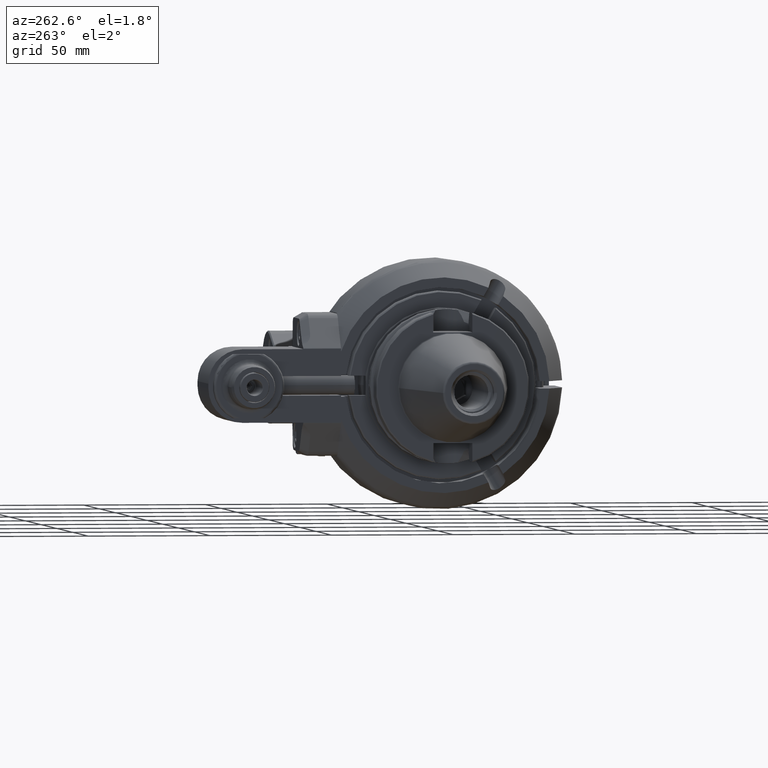
[diagram: clean part render]
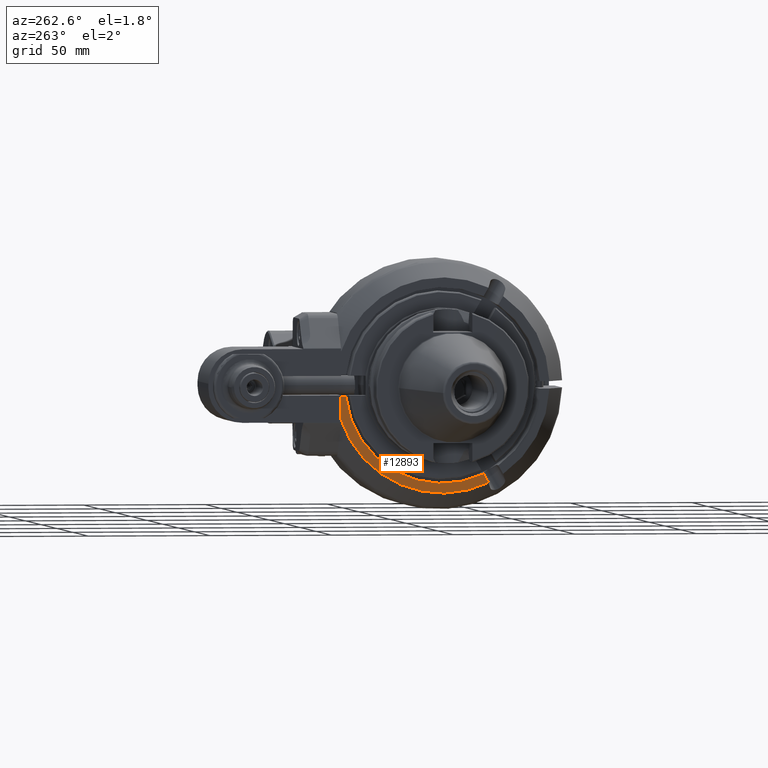
[diagram: same view with one face highlighted and labeled with its STEP entity id]
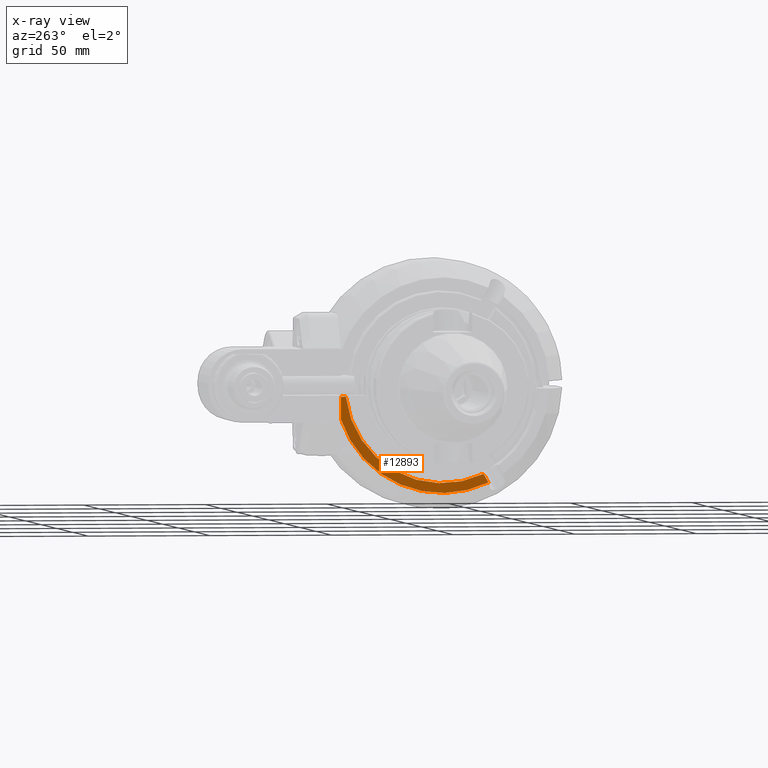
[diagram: x-ray of the same camera — body ghosted, the highlighted face saturated]
A machine part, auxiliary view. The second image highlights one B-rep face of the part: STEP entity #12893.
The next image is the same camera in x-ray: the body ghosted, the highlighted face saturated — about 0% of this face is hidden behind the body in this view.
In plain terms, the highlighted planar face has unit normal (-1, -0, 0).
Its self-contained STEP definition (entity closure, byte-faithful):
#1296=LINE('',#21707,#2149);
#1318=LINE('',#21935,#2171);
#1319=LINE('',#21953,#2172);
#2149=VECTOR('',#16956,9.390194383158);
#2171=VECTOR('',#17032,4.01399376984687);
#2172=VECTOR('',#17045,2.003931011986);
#3195=FACE_OUTER_BOUND('',#4066,.T.);
#4066=EDGE_LOOP('',(#10529,#10530,#10531,#10532,#10533));
#4845=CIRCLE('',#14171,40.);
#4848=CIRCLE('',#14176,44.);
#5798=VERTEX_POINT('',#21702);
#5799=VERTEX_POINT('',#21706);
#5836=VERTEX_POINT('',#21918);
#5837=VERTEX_POINT('',#21920);
#5838=VERTEX_POINT('',#21924);
#7433=EDGE_CURVE('',#5799,#5798,#1296,.T.);
#7482=EDGE_CURVE('',#5837,#5836,#4845,.T.);
#7485=EDGE_CURVE('',#5838,#5837,#1318,.T.);
#7489=EDGE_CURVE('',#5798,#5838,#4848,.T.);
#7490=EDGE_CURVE('',#5836,#5799,#1319,.T.);
#10529=ORIENTED_EDGE('',*,*,#7489,.T.);
#10530=ORIENTED_EDGE('',*,*,#7485,.T.);
#10531=ORIENTED_EDGE('',*,*,#7482,.T.);
#10532=ORIENTED_EDGE('',*,*,#7490,.T.);
#10533=ORIENTED_EDGE('',*,*,#7433,.T.);
#12262=PLANE('',#14178);
#12893=ADVANCED_FACE('',(#3195),#12262,.T.);
#14171=AXIS2_PLACEMENT_3D('',#21921,#17027,#17028);
#14176=AXIS2_PLACEMENT_3D('',#21950,#17039,#17040);
#14178=AXIS2_PLACEMENT_3D('',#21952,#17043,#17044);
#16956=DIRECTION('',(0.,-1.284852598456E-12,-1.));
#17027=DIRECTION('center_axis',(1.,0.,0.));
#17028=DIRECTION('ref_axis',(0.,-0.422305036941278,-0.906453780274552));
#17032=DIRECTION('',(0.,0.500000000000017,0.866025403784429));
#17039=DIRECTION('center_axis',(-1.,0.,0.));
#17040=DIRECTION('ref_axis',(0.,0.948863636363632,-0.315686235979311));
#17043=DIRECTION('center_axis',(-1.,0.,0.));
#17044=DIRECTION('ref_axis',(0.,-1.,0.));
#17045=DIRECTION('',(0.,1.,0.));
#21702=CARTESIAN_POINT('',(-39.5,41.74999999999,-13.89019438316));
#21706=CARTESIAN_POINT('',(-39.5,41.75,-4.5));
#21707=CARTESIAN_POINT('',(-39.5,41.75,-4.5));
#21918=CARTESIAN_POINT('',(-39.5,39.74606898801,-4.5));
#21920=CARTESIAN_POINT('',(-39.5,-16.89220147765,-36.25815121098));
#21921=CARTESIAN_POINT('Origin',(-39.5,0.,0.));
#21924=CARTESIAN_POINT('',(-39.5,-18.89919836257,-39.7343717863));
#21935=CARTESIAN_POINT('',(-39.5,-18.89919836257,-39.7343717863));
#21950=CARTESIAN_POINT('Origin',(-39.5,0.,0.));
#21952=CARTESIAN_POINT('Origin',(-39.5,-40.75,0.));
#21953=CARTESIAN_POINT('',(-39.5,39.74606898801,-4.5));